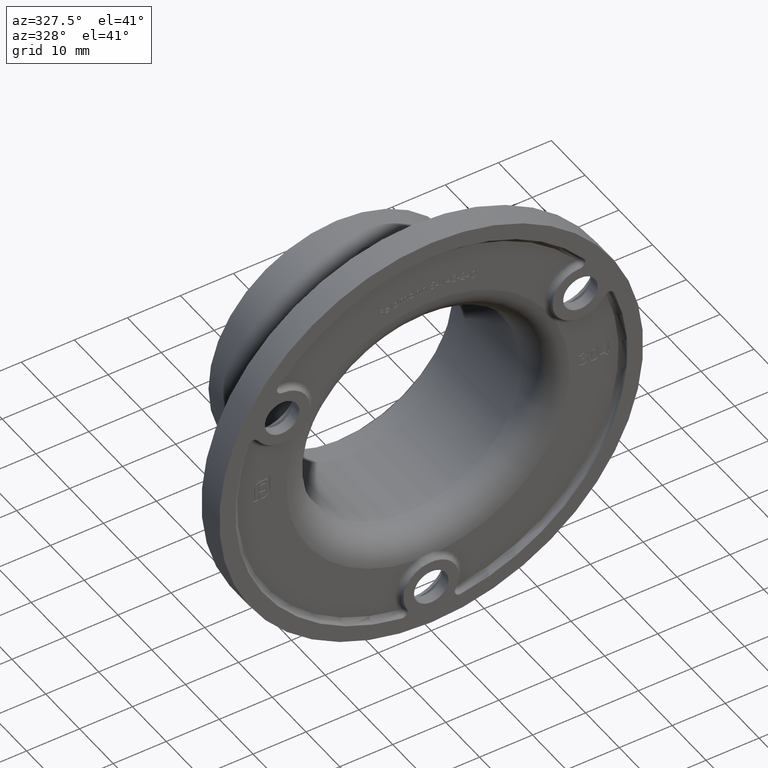
[diagram: clean part render]
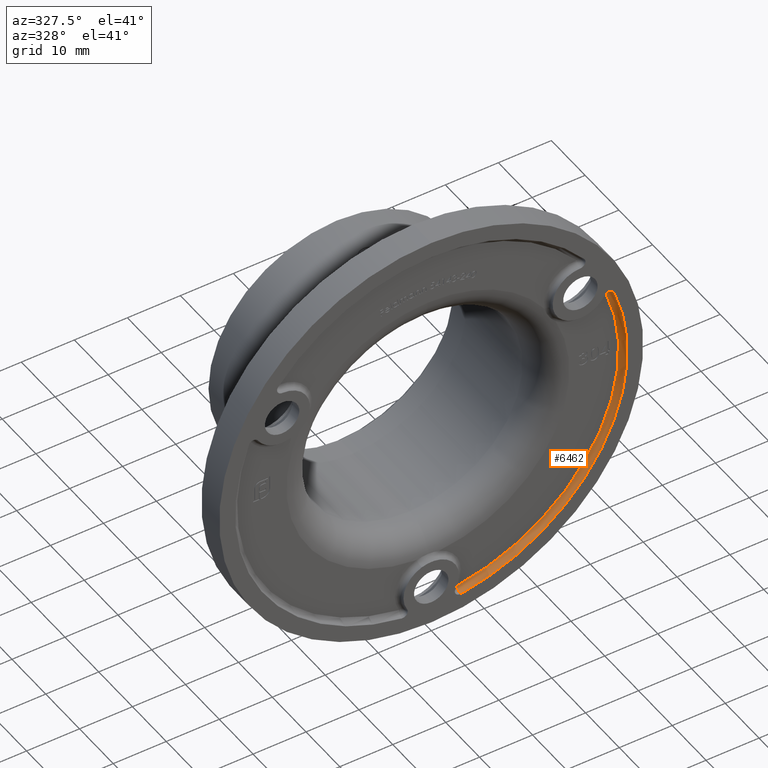
[diagram: same view with one face highlighted and labeled with its STEP entity id]
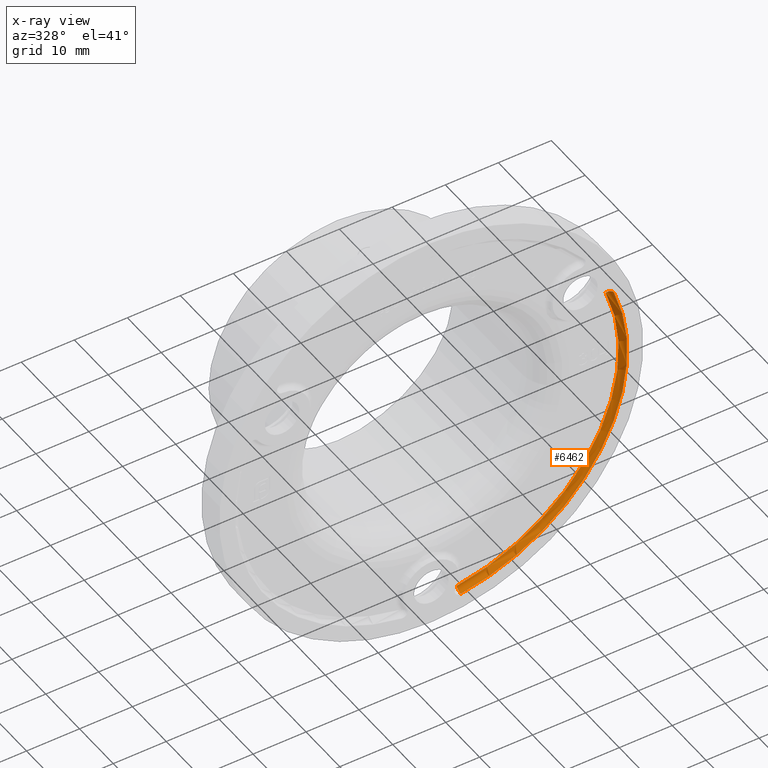
[diagram: x-ray of the same camera — body ghosted, the highlighted face saturated]
A machine part, auxiliary view. The second image highlights one B-rep face of the part: STEP entity #6462.
The next image is the same camera in x-ray: the body ghosted, the highlighted face saturated — about 0% of this face is hidden behind the body in this view.
In plain terms, the highlighted toroidal blend (fillet) surface has major radius 36 mm and minor (blend) radius 1 mm.
Its self-contained STEP definition (entity closure, byte-faithful):
#514 = FACE_OUTER_BOUND ( 'NONE', #16287, .T. ) ;
#850 = AXIS2_PLACEMENT_3D ( 'NONE', #8972, #1127, #18497 ) ;
#1127 = DIRECTION ( 'NONE',  ( -0.000000000000000000, -1.000000000000000000, -0.000000000000000000 ) ) ;
#2216 = TOROIDAL_SURFACE ( 'NONE', #5272, 36.00000000000000000, 1.000000000000000000 ) ;
#2365 = CARTESIAN_POINT ( 'NONE',  ( 0.000000000000000000, -8.673617379884035472E-16, 0.000000000000000000 ) ) ;
#3167 = CARTESIAN_POINT ( 'NONE',  ( 33.53674750267279592, -8.673617379884035472E-16, 13.08764940476208771 ) ) ;
#4306 = VERTEX_POINT ( 'NONE', #18604 ) ;
#4483 = DIRECTION ( 'NONE',  ( -0.1509482469718971820, 0.000000000000000000, 0.9885416666666666519 ) ) ;
#5017 = VERTEX_POINT ( 'NONE', #8812 ) ;
#5118 = VERTEX_POINT ( 'NONE', #18551 ) ;
#5124 = DIRECTION ( 'NONE',  ( -0.000000000000000000, -1.000000000000000000, -0.000000000000000000 ) ) ;
#5272 = AXIS2_PLACEMENT_3D ( 'NONE', #2365, #13408, #11812 ) ;
#5334 = AXIS2_PLACEMENT_3D ( 'NONE', #10687, #18648, #4483 ) ;
#6369 = EDGE_CURVE ( 'NONE', #4306, #6415, #6918, .T. ) ;
#6415 = VERTEX_POINT ( 'NONE', #11609 ) ;
#6462 = ADVANCED_FACE ( 'NONE', ( #514 ), #2216, .F. ) ;
#6501 = DIRECTION ( 'NONE',  ( 0.3635458167989479294, 0.000000000000000000, -0.9315763195186888002 ) ) ;
#6918 = CIRCLE ( 'NONE', #12295, 37.00000000000000000 ) ;
#7297 = EDGE_CURVE ( 'NONE', #5118, #6415, #20027, .T. ) ;
#8812 = CARTESIAN_POINT ( 'NONE',  ( 5.434136890988297885, 0.9999999999999991118, -35.58749999999999147 ) ) ;
#8972 = CARTESIAN_POINT ( 'NONE',  ( 0.000000000000000000, 0.9999999999999991118, 0.000000000000000000 ) ) ;
#10043 = AXIS2_PLACEMENT_3D ( 'NONE', #3167, #6501, #17520 ) ;
#10687 = CARTESIAN_POINT ( 'NONE',  ( 5.434136890988297885, -4.336808689942017736E-16, -35.58749999999999147 ) ) ;
#10881 = ORIENTED_EDGE ( 'NONE', *, *, #7297, .F. ) ;
#11415 = CARTESIAN_POINT ( 'NONE',  ( 0.000000000000000000, -9.797174393178811852E-16, 0.000000000000000000 ) ) ;
#11609 = CARTESIAN_POINT ( 'NONE',  ( 34.46832382219149338, -9.797174393178811852E-16, 13.45119522156103642 ) ) ;
#11812 = DIRECTION ( 'NONE',  ( 0.000000000000000000, 0.000000000000000000, -1.000000000000000000 ) ) ;
#12295 = AXIS2_PLACEMENT_3D ( 'NONE', #11415, #5124, #19102 ) ;
#12976 = EDGE_CURVE ( 'NONE', #5017, #5118, #13236, .T. ) ;
#13236 = CIRCLE ( 'NONE', #850, 36.00000000000000000 ) ;
#13408 = DIRECTION ( 'NONE',  ( -0.000000000000000000, -1.000000000000000000, -0.000000000000000000 ) ) ;
#13454 = CIRCLE ( 'NONE', #5334, 1.000000000000002220 ) ;
#14339 = EDGE_CURVE ( 'NONE', #5017, #4306, #13454, .T. ) ;
#15689 = ORIENTED_EDGE ( 'NONE', *, *, #6369, .T. ) ;
#16287 = EDGE_LOOP ( 'NONE', ( #17697, #15689, #10881, #19490 ) ) ;
#17520 = DIRECTION ( 'NONE',  ( -0.9315763195186882450, 0.000000000000000000, -0.3635458167989487621 ) ) ;
#17697 = ORIENTED_EDGE ( 'NONE', *, *, #14339, .T. ) ;
#18497 = DIRECTION ( 'NONE',  ( 0.000000000000000000, 0.000000000000000000, -1.000000000000000000 ) ) ;
#18551 = CARTESIAN_POINT ( 'NONE',  ( 33.53674750267279592, 0.9999999999999991118, 13.08764940476208771 ) ) ;
#18604 = CARTESIAN_POINT ( 'NONE',  ( 5.585085137960195567, -9.797174393178811852E-16, -36.57604166666666146 ) ) ;
#18648 = DIRECTION ( 'NONE',  ( -0.9885416666666667629, 0.000000000000000000, -0.1509482469718972097 ) ) ;
#19102 = DIRECTION ( 'NONE',  ( 0.000000000000000000, 0.000000000000000000, -1.000000000000000000 ) ) ;
#19490 = ORIENTED_EDGE ( 'NONE', *, *, #12976, .F. ) ;
#20027 = CIRCLE ( 'NONE', #10043, 0.9999999999999972244 ) ;